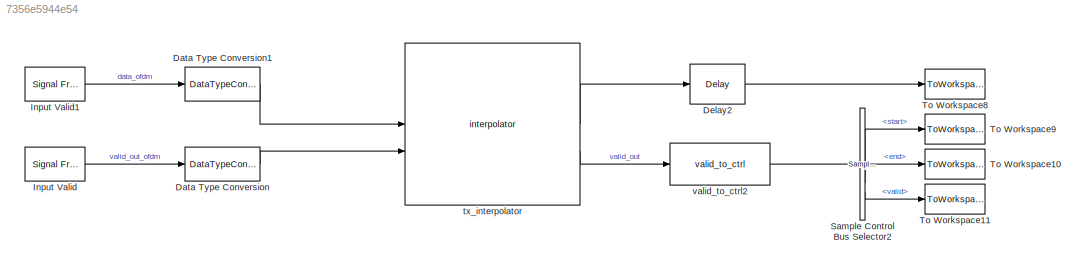
MODEL slx_7356e5944e54
KIND model
CONFIG AbsTol = auto
CONFIG EnableMultiTasking = off
CONFIG FixedStep = auto
CONFIG MaxStep = auto
CONFIG MinStep = auto
CONFIG RelTol = 1e-3
CONFIG SampleTimeConstraint = Unconstrained
CONFIG SolverName = VariableStepAuto
CONFIG StartTime = 0.0
CONFIG StopTime = stopTime
BLOCK [DataTypeConversion] Data Type Conversion
  OutDataTypeStr = boolean
  RndMeth = Floor
  SaturateOnIntegerOverflow = off
BLOCK [DataTypeConversion] Data Type Conversion1
  OutDataTypeStr = fixdt(1,16,14)
  RndMeth = Floor
  SaturateOnIntegerOverflow = off
BLOCK [Delay] Delay2
  DelayLength = 1
  InitialCondition = 0
  InputPortMap = u0
  UseCircularBuffer = on
  UserDataPersistent = on
BLOCK [Reference] Input Valid  REF=dspsrcs4/Signal From
Workspace
  SourceBlock = dspsrcs4/Signal From\nWorkspace
  SourceType = Signal From Workspace
BLOCK [Reference] Input Valid1  REF=dspsrcs4/Signal From
Workspace
  SourceBlock = dspsrcs4/Signal From\nWorkspace
  SourceType = Signal From Workspace
BLOCK [Reference] Sample Control Bus Selector2  REF=whdlutilities/Sample Control
Bus Selector
  SourceBlock = whdlutilities/Sample Control\nBus Selector
BLOCK [ToWorkspace] To Workspace10
  MaxDataPoints = inf
  SampleTime = 1/(CONST.fPHY*CONST.txL)
  Save2DSignal = 2-D array (concatenate along first dimension)
  VariableName = endOut
BLOCK [ToWorkspace] To Workspace11
  MaxDataPoints = inf
  SampleTime = 1/(CONST.fPHY*CONST.txL)
  Save2DSignal = 2-D array (concatenate along first dimension)
  VariableName = validOut
BLOCK [ToWorkspace] To Workspace8
  MaxDataPoints = inf
  SampleTime = 1/(CONST.fPHY*CONST.txL)
  Save2DSignal = 2-D array (concatenate along first dimension)
  VariableName = dataOut
BLOCK [ToWorkspace] To Workspace9
  MaxDataPoints = inf
  SampleTime = 1/(CONST.fPHY*CONST.txL)
  Save2DSignal = 2-D array (concatenate along first dimension)
  VariableName = startOut
BLOCK [Reference] tx_interpolator  REF=HDL_ieee_8021513/interpolator
  SourceBlock = HDL_ieee_8021513/interpolator
  SourceProductName = HDL IEEE 8021513
  SourceType = SubSystem
BLOCK [Reference] valid_to_ctrl2  REF=HDL_ieee_8021513/valid_to_ctrl
  SourceBlock = HDL_ieee_8021513/valid_to_ctrl
  SourceProductName = HDL IEEE 8021513
  SourceType = SubSystem
LINE Data Type Conversion1:1 -> tx_interpolator:1
LINE Data Type Conversion:1 -> tx_interpolator:2
LINE Delay2:1 -> To Workspace8:1
LINE Input Valid1:1 -> Data Type Conversion1:1
LINE Input Valid:1 -> Data Type Conversion:1
LINE Sample Control Bus Selector2:1 -> To Workspace9:1
LINE Sample Control Bus Selector2:2 -> To Workspace10:1
LINE Sample Control Bus Selector2:3 -> To Workspace11:1
LINE tx_interpolator:1 -> Delay2:1
LINE tx_interpolator:2 -> valid_to_ctrl2:1
LINE valid_to_ctrl2:1 -> Sample Control Bus Selector2:1
